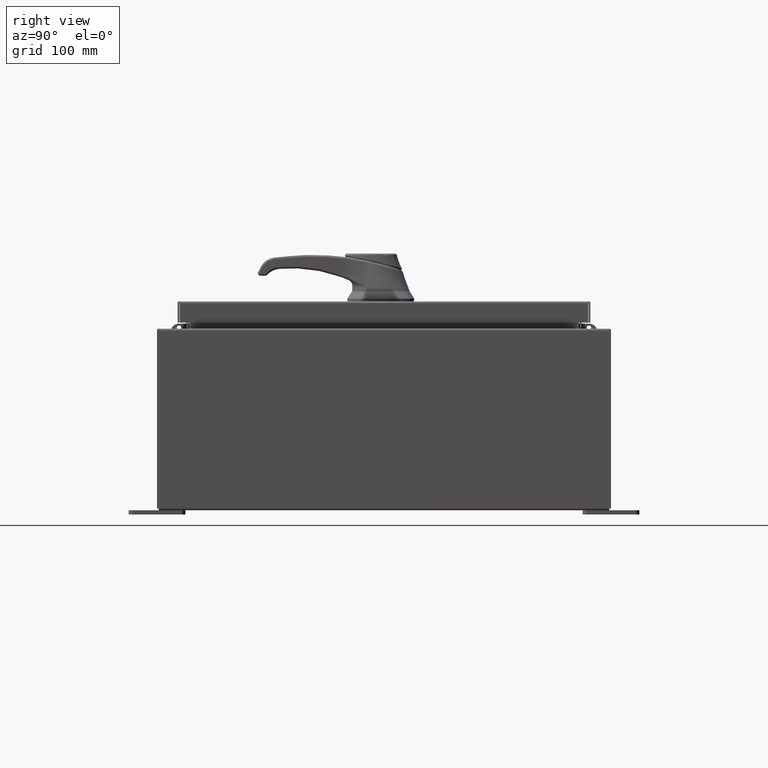
[diagram: clean part render]
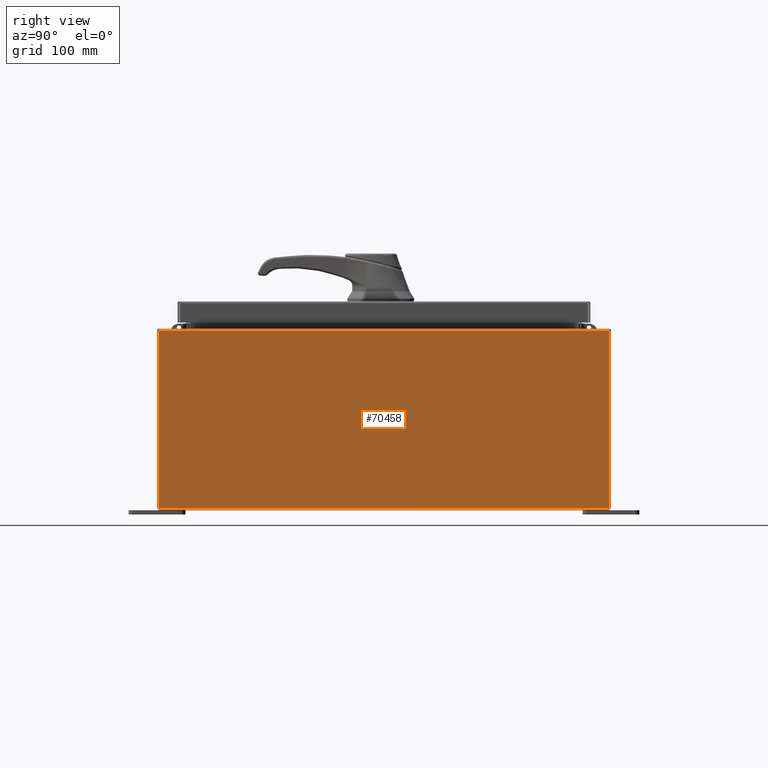
[diagram: same view with one face highlighted and labeled with its STEP entity id]
A machine part, right view. The second image highlights one B-rep face of the part: STEP entity #70458.
In plain terms, the highlighted planar face has unit normal (-1, 0, 0).
Its self-contained STEP definition (entity closure, byte-faithful):
#2127 = VECTOR ( 'NONE', #23105, 39.37007874015748100 ) ;
#8654 = CARTESIAN_POINT ( 'NONE',  ( 10.00000000000000000, 9.925299999999998200, 0.01299999999999984700 ) ) ;
#11835 = LINE ( 'NONE', #25919, #98987 ) ;
#14408 = ORIENTED_EDGE ( 'NONE', *, *, #76301, .T. ) ;
#21937 = LINE ( 'NONE', #48210, #2127 ) ;
#23105 = DIRECTION ( 'NONE',  ( 3.584876173029202900E-015, -5.515194112352620500E-016, 1.000000000000000000 ) ) ;
#23836 = VERTEX_POINT ( 'NONE', #72763 ) ;
#24416 = VERTEX_POINT ( 'NONE', #80775 ) ;
#25919 = CARTESIAN_POINT ( 'NONE',  ( 10.00000000000002800, 9.925299999999992900, 7.837599999999999200 ) ) ;
#36638 = CARTESIAN_POINT ( 'NONE',  ( 10.00000000000000000, 0.0000000000000000000, -3.610957538630361200E-014 ) ) ;
#36707 = DIRECTION ( 'NONE',  ( -3.584876173029202900E-015, 5.515194112352620500E-016, -1.000000000000000000 ) ) ;
#38476 = LINE ( 'NONE', #85712, #83319 ) ;
#44187 = ORIENTED_EDGE ( 'NONE', *, *, #64540, .T. ) ;
#44816 = ORIENTED_EDGE ( 'NONE', *, *, #108336, .F. ) ;
#48210 = CARTESIAN_POINT ( 'NONE',  ( 10.00000000000000000, 9.925300000000001800, -3.063557977397026300E-014 ) ) ;
#52545 = EDGE_CURVE ( 'NONE', #72669, #23836, #11835, .T. ) ;
#53594 = DIRECTION ( 'NONE',  ( 3.584876173029202900E-015, 0.0000000000000000000, 1.000000000000000000 ) ) ;
#57326 = LINE ( 'NONE', #104120, #77071 ) ;
#57588 = VERTEX_POINT ( 'NONE', #8654 ) ;
#58126 = ORIENTED_EDGE ( 'NONE', *, *, #52545, .T. ) ;
#60262 = DIRECTION ( 'NONE',  ( -0.0000000000000000000, -1.000000000000000000, -0.0000000000000000000 ) ) ;
#64540 = EDGE_CURVE ( 'NONE', #57588, #72669, #21937, .T. ) ;
#70458 = ADVANCED_FACE ( 'NONE', ( #99119 ), #95603, .F. ) ;
#70692 = CARTESIAN_POINT ( 'NONE',  ( 10.00000000000002800, 9.925299999999991100, 7.837599999999999200 ) ) ;
#71685 = AXIS2_PLACEMENT_3D ( 'NONE', #36638, #104060, #53594 ) ;
#72669 = VERTEX_POINT ( 'NONE', #70692 ) ;
#72763 = CARTESIAN_POINT ( 'NONE',  ( 10.00000000000002800, -9.925300000000001800, 7.837599999999999200 ) ) ;
#76301 = EDGE_CURVE ( 'NONE', #23836, #24416, #57326, .T. ) ;
#77071 = VECTOR ( 'NONE', #36707, 39.37007874015748100 ) ;
#80775 = CARTESIAN_POINT ( 'NONE',  ( 10.00000000000000000, -9.925299999999998200, 0.01299999999999983600 ) ) ;
#83319 = VECTOR ( 'NONE', #60262, 39.37007874015748100 ) ;
#85712 = CARTESIAN_POINT ( 'NONE',  ( 10.00000000000000000, -9.925300000000000000, 0.01299999999999984700 ) ) ;
#89427 = EDGE_LOOP ( 'NONE', ( #58126, #14408, #44816, #44187 ) ) ;
#94116 = DIRECTION ( 'NONE',  ( -0.0000000000000000000, -1.000000000000000000, -0.0000000000000000000 ) ) ;
#95603 = PLANE ( 'NONE',  #71685 ) ;
#98987 = VECTOR ( 'NONE', #94116, 39.37007874015748100 ) ;
#99119 = FACE_OUTER_BOUND ( 'NONE', #89427, .T. ) ;
#104060 = DIRECTION ( 'NONE',  ( -1.000000000000000000, 0.0000000000000000000, 3.584876173029202900E-015 ) ) ;
#104120 = CARTESIAN_POINT ( 'NONE',  ( 10.00000000000000000, -9.925299999999998200, -4.158357099863696100E-014 ) ) ;
#108336 = EDGE_CURVE ( 'NONE', #57588, #24416, #38476, .T. ) ;